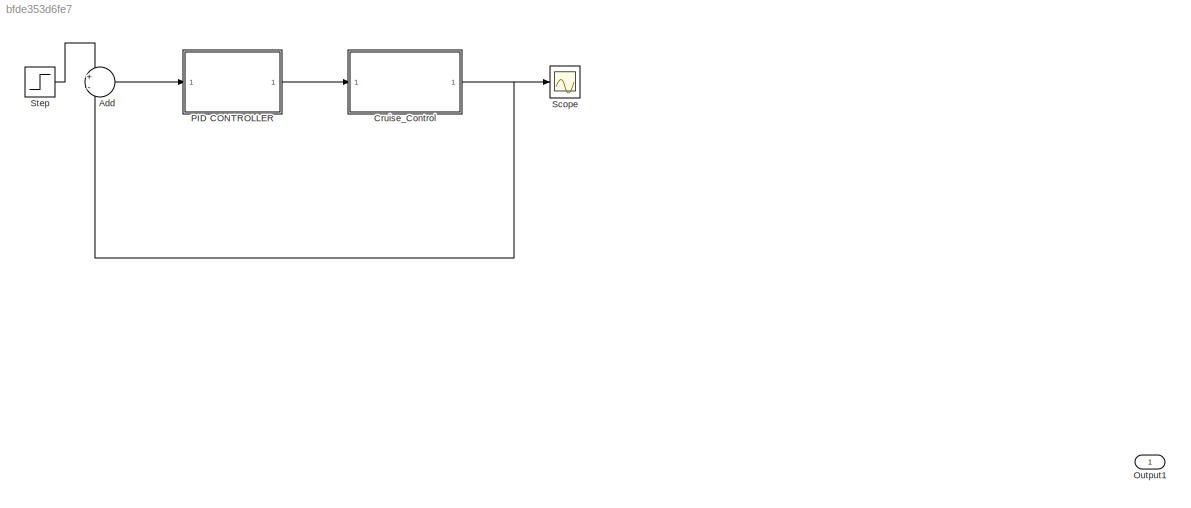
MODEL slx_bfde353d6fe7
KIND model
CONFIG AbsTol = auto
CONFIG EnableMultiTasking = off
CONFIG FixedStep = 0.01
CONFIG MaxStep = auto
CONFIG MinStep = auto
CONFIG RelTol = 1e-3
CONFIG SampleTimeConstraint = Unconstrained
CONFIG Solver = ode4
CONFIG SolverName = ode4
CONFIG StartTime = 0.0
CONFIG StopTime = 10
BLOCK [Sum] Add
  Inputs = +-
  Ports = [2, 1]
BLOCK [SubSystem] Cruise_Control
  Ports = [1, 1]
  ReferencedSubsystem = Cruise_Control
  RequestExecContextInheritance = off
  TreatAsAtomicUnit = on
BLOCK [Outport] Output1
  OutDataTypeStr = double
  PortDimensions = 1
  SampleTime = 0
  SamplingMode = Sample based
  SignalType = real
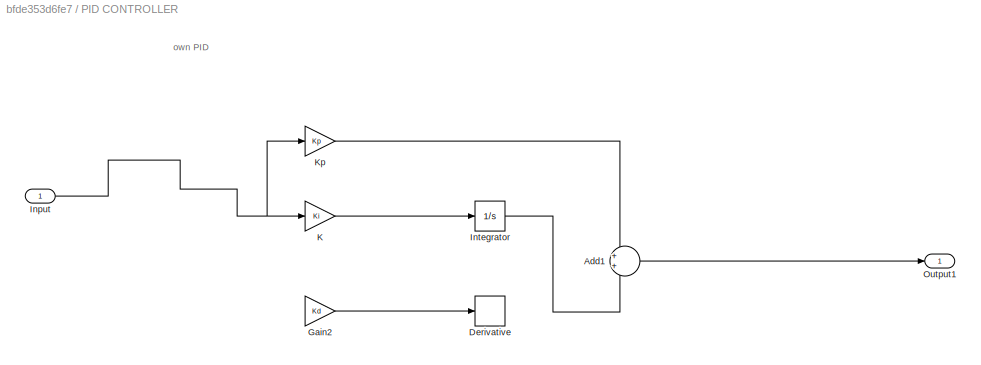
BLOCK [SubSystem] PID CONTROLLER
  Ports = [1, 1]
  RequestExecContextInheritance = off
BLOCK [Sum] PID CONTROLLER/Add1
  Ports = [2, 1]
BLOCK [Derivative] PID CONTROLLER/Derivative
  Commented = on
BLOCK [Gain] PID CONTROLLER/Gain2
  Commented = on
  Gain = Kd
BLOCK [Inport] PID CONTROLLER/Input
BLOCK [Integrator] PID CONTROLLER/Integrator
  Ports = [1, 1]
BLOCK [Gain] PID CONTROLLER/K
  Gain = Ki
BLOCK [Gain] PID CONTROLLER/Kp
  Gain = Kp
BLOCK [Outport] PID CONTROLLER/Output1
  OutDataTypeStr = double
  PortDimensions = 1
  SampleTime = 0
  SamplingMode = Sample based
  SignalType = real
BLOCK [Scope] Scope
  Floating = off
  NumInputPorts = 1
  Ports = [1]
  ScopeSpecificationString = Simulink.scopes.TimeScopeBlockCfg('CurrentConfiguration', extmgr.ConfigurationSet(extmgr.Configuration('Core','General UI',true),extmgr.Configuration('Core','Source UI',true),extmgr.Configuration('Sources','WiredSimulink',true),extmgr.Configuration('Visuals','Time Domain',true,'SerializedDisplays',{struct('MinYLimReal','-1.25853','MaxYLimReal','11.32679','YLabelReal','','MinYLimMag','0.00000','Max...<+1421ch>
BLOCK [Step] Step
  After = u
  SampleTime = 0
ANNOTATION PID CONTROLLER: own PID
LINE Add:1 -> PID CONTROLLER:1
NET Cruise_Control:1 -> Add:2, Scope:1
LINE PID CONTROLLER/Add1:1 -> PID CONTROLLER/Output1:1
LINE PID CONTROLLER/Gain2:1 -> PID CONTROLLER/Derivative:1
NET PID CONTROLLER/Input:1 -> PID CONTROLLER/K:1, PID CONTROLLER/Kp:1
LINE PID CONTROLLER/Integrator:1 -> PID CONTROLLER/Add1:2
LINE PID CONTROLLER/K:1 -> PID CONTROLLER/Integrator:1
LINE PID CONTROLLER/Kp:1 -> PID CONTROLLER/Add1:1
LINE PID CONTROLLER:1 -> Cruise_Control:1
LINE Step:1 -> Add:1
note: NET lines group one-source signal fan-out (src -> all destinations, sorted); 1:1 wires keep LINE
